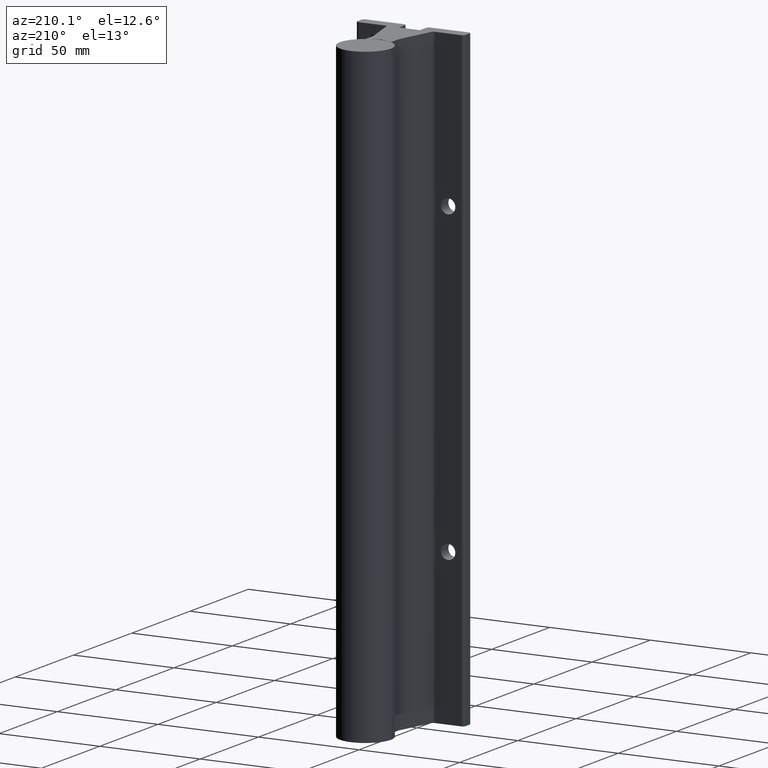
[diagram: clean part render]
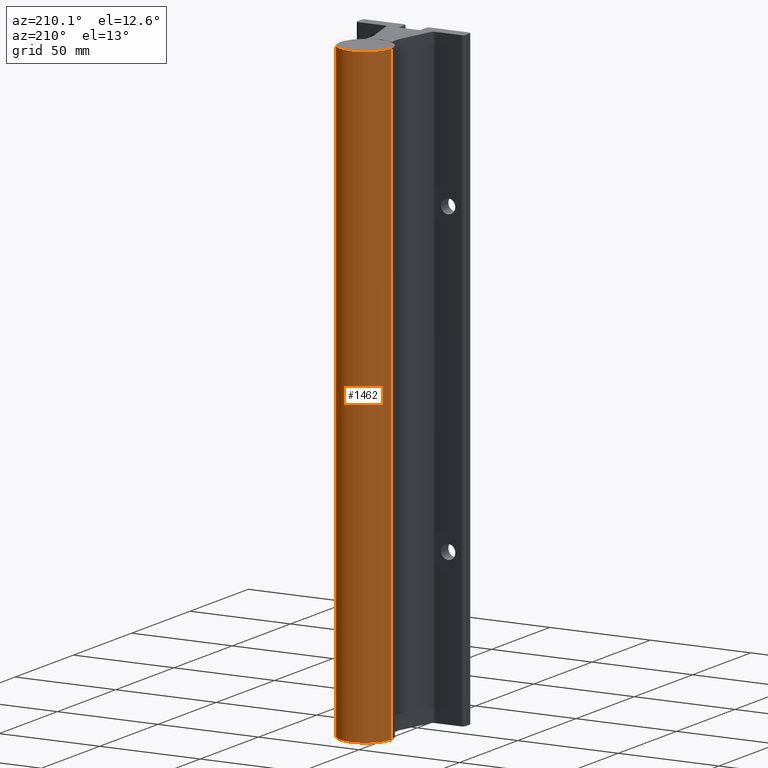
[diagram: same view with one face highlighted and labeled with its STEP entity id]
A machine part, auxiliary view. The second image highlights one B-rep face of the part: STEP entity #1462.
In plain terms, the highlighted cylindrical surface (edge-blend (fillet) strip) has radius 12.7 mm, axis along (0, 0, 1).
Its self-contained STEP definition (entity closure, byte-faithful):
#21 = VERTEX_POINT ( 'NONE', #3940 ) ;
#308 = AXIS2_PLACEMENT_3D ( 'NONE', #4555, #412, #4651 ) ;
#332 = CIRCLE ( 'NONE', #5727, 0.5000000000000000000 ) ;
#412 = DIRECTION ( 'NONE',  ( 0.000000000000000000, 0.000000000000000000, 1.000000000000000000 ) ) ;
#845 = VERTEX_POINT ( 'NONE', #4101 ) ;
#1170 = DIRECTION ( 'NONE',  ( 0.000000000000000000, 0.000000000000000000, 1.000000000000000000 ) ) ;
#1462 = ADVANCED_FACE ( 'NONE', ( #5297 ), #4381, .T. ) ;
#1549 = DIRECTION ( 'NONE',  ( 0.000000000000000000, 0.000000000000000000, 1.000000000000000000 ) ) ;
#1645 = LINE ( 'NONE', #2084, #3584 ) ;
#1654 = EDGE_CURVE ( 'NONE', #6015, #5841, #2093, .T. ) ;
#1791 = ORIENTED_EDGE ( 'NONE', *, *, #1654, .T. ) ;
#2080 = ORIENTED_EDGE ( 'NONE', *, *, #3051, .F. ) ;
#2084 = CARTESIAN_POINT ( 'NONE',  ( 0.5000000000000000000, 1.750000000000000000, -11.99999999999999822 ) ) ;
#2093 = LINE ( 'NONE', #3444, #5810 ) ;
#2139 = DIRECTION ( 'NONE',  ( 1.000000000000000000, 0.000000000000000000, 0.000000000000000000 ) ) ;
#2475 = EDGE_CURVE ( 'NONE', #845, #6015, #332, .T. ) ;
#2646 = DIRECTION ( 'NONE',  ( 0.000000000000000000, 0.000000000000000000, 1.000000000000000000 ) ) ;
#2944 = CIRCLE ( 'NONE', #308, 0.5000000000000000000 ) ;
#2987 = AXIS2_PLACEMENT_3D ( 'NONE', #4406, #4472, #2139 ) ;
#3051 = EDGE_CURVE ( 'NONE', #845, #21, #1645, .T. ) ;
#3146 = DIRECTION ( 'NONE',  ( 1.000000000000000000, 0.000000000000000000, 0.000000000000000000 ) ) ;
#3444 = CARTESIAN_POINT ( 'NONE',  ( -0.5000000000000000000, 1.750000000000000000, -11.99999999999999822 ) ) ;
#3584 = VECTOR ( 'NONE', #1170, 39.37007874015748143 ) ;
#3812 = ORIENTED_EDGE ( 'NONE', *, *, #5176, .F. ) ;
#3940 = CARTESIAN_POINT ( 'NONE',  ( 0.5000000000000000000, 1.750000000000000000, 0.000000000000000000 ) ) ;
#4101 = CARTESIAN_POINT ( 'NONE',  ( 0.5000000000000000000, 1.750000000000000000, -11.99999999999999822 ) ) ;
#4381 = CYLINDRICAL_SURFACE ( 'NONE', #2987, 0.5000000000000000000 ) ;
#4406 = CARTESIAN_POINT ( 'NONE',  ( 0.000000000000000000, 1.750000000000000000, -11.99999999999999822 ) ) ;
#4472 = DIRECTION ( 'NONE',  ( 0.000000000000000000, 0.000000000000000000, 1.000000000000000000 ) ) ;
#4555 = CARTESIAN_POINT ( 'NONE',  ( 0.000000000000000000, 1.750000000000000000, 0.000000000000000000 ) ) ;
#4651 = DIRECTION ( 'NONE',  ( 1.000000000000000000, 0.000000000000000000, 0.000000000000000000 ) ) ;
#4837 = ORIENTED_EDGE ( 'NONE', *, *, #2475, .T. ) ;
#4865 = CARTESIAN_POINT ( 'NONE',  ( -0.5000000000000000000, 1.750000000000000000, -11.99999999999999822 ) ) ;
#4933 = EDGE_LOOP ( 'NONE', ( #4837, #1791, #3812, #2080 ) ) ;
#5176 = EDGE_CURVE ( 'NONE', #21, #5841, #2944, .T. ) ;
#5297 = FACE_OUTER_BOUND ( 'NONE', #4933, .T. ) ;
#5327 = CARTESIAN_POINT ( 'NONE',  ( -0.5000000000000000000, 1.750000000000000000, 0.000000000000000000 ) ) ;
#5727 = AXIS2_PLACEMENT_3D ( 'NONE', #6011, #2646, #3146 ) ;
#5810 = VECTOR ( 'NONE', #1549, 39.37007874015748143 ) ;
#5841 = VERTEX_POINT ( 'NONE', #5327 ) ;
#6011 = CARTESIAN_POINT ( 'NONE',  ( 0.000000000000000000, 1.750000000000000000, -11.99999999999999822 ) ) ;
#6015 = VERTEX_POINT ( 'NONE', #4865 ) ;